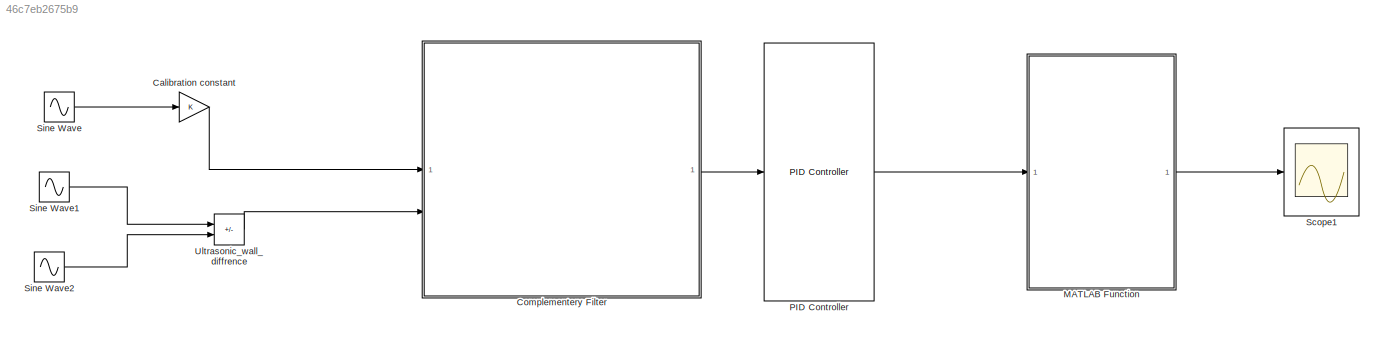
MODEL slx_46c7eb2675b9
KIND model
CONFIG AbsTol = auto
CONFIG EnableMultiTasking = on
CONFIG FixedStep = auto
CONFIG MaxStep = auto
CONFIG MinStep = auto
CONFIG RelTol = 1e-3
CONFIG SampleTimeConstraint = Unconstrained
CONFIG SolverName = VariableStepAuto
CONFIG StartTime = 0.0
CONFIG StopTime = 10.0
BLOCK [Gain] Calibration constant
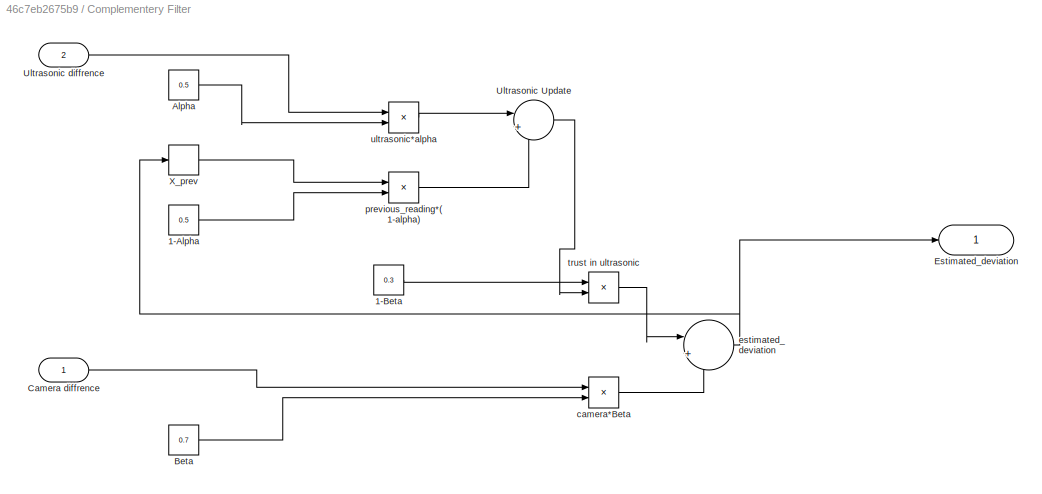
BLOCK [SubSystem] Complementery Filter
BLOCK [Constant] Complementery Filter/1-Alpha
  Value = 0.5
BLOCK [Constant] Complementery Filter/1-Beta
  Value = 0.3
BLOCK [Constant] Complementery Filter/Alpha
  Value = 0.5
BLOCK [Constant] Complementery Filter/Beta
  Value = 0.7
BLOCK [Inport] Complementery Filter/Camera diffrence
BLOCK [Outport] Complementery Filter/Estimated_deviation
BLOCK [Sum] Complementery Filter/Ultrasonic Update
  Inputs = |++
BLOCK [Inport] Complementery Filter/Ultrasonic diffrence
  IconDisplay = Signal name
  Port = 2
BLOCK [Memory] Complementery Filter/X_prev
BLOCK [Product] Complementery Filter/camera*Beta
BLOCK [Sum] Complementery Filter/estimated_deviation
  Inputs = |++
BLOCK [Product] Complementery Filter/previous_reading*(1-alpha)
BLOCK [Product] Complementery Filter/trust in ultrasonic
BLOCK [Product] Complementery Filter/ultrasonic*alpha
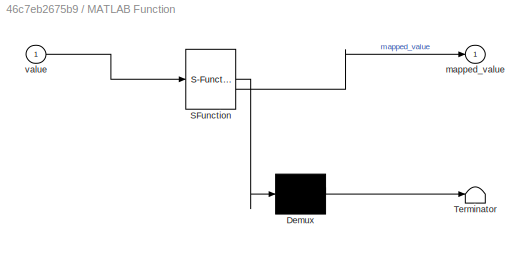
BLOCK [SubSystem] MATLAB Function
  ErrorFcn = Stateflow.Translate.translate
  PermitHierarchicalResolution = ExplicitOnly
  SFBlockType = MATLAB Function
  TreatAsAtomicUnit = on
BLOCK [Demux] MATLAB Function/ Demux 
  Outputs = 1
BLOCK [S-Function] MATLAB Function/ SFunction 
  EnableBusSupport = on
  FunctionName = sf_sfun
  PortCounts = [1 2]
  SFcnIsStateOwnerBlock = off
  SFunctionDeploymentMode = off
  Tag = Stateflow S-Function 2
BLOCK [Terminator] MATLAB Function/ Terminator 
BLOCK [Outport] MATLAB Function/mapped_value
BLOCK [Inport] MATLAB Function/value
BLOCK [Reference] PID Controller  REF=slpidlib/PID Controller
  LibrarySourceBlock = simulink/Continuous/PID Controller
  SourceBlock = slpidlib/PID Controller
  SourceType = PID 1dof
BLOCK [Scope] Scope1
  Floating = off
  NumInputPorts = 1
  ScopeSpecificationString = Simulink.scopes.TimeScopeBlockCfg('CurrentConfiguration', extmgr.ConfigurationSet(extmgr.Configuration('Core','General UI',true),extmgr.Configuration('Core','Source UI',true),extmgr.Configuration('Sources','WiredSimulink',true,'DataLoggingVariableName','ScopeData1'),extmgr.Configuration('Visuals','Time Domain',true,'SerializedDisplays',{struct('MinYLimReal','24.69','MaxYLimReal','160.26151','YLabe...<+1556ch>
BLOCK [Sin] Sine Wave
  Amplitude = 25
  SampleTime = 0
BLOCK [Sin] Sine Wave1
  Amplitude = 25
  SampleTime = 0
BLOCK [Sin] Sine Wave2
  Amplitude = 25
  SampleTime = 0
BLOCK [Sum] Ultrasonic_wall_diffrence
  IconShape = rectangular
  Inputs = +-
LINE Calibration constant:1 -> Complementery Filter:1
LINE Complementery Filter/1-Alpha:1 -> Complementery Filter/previous_reading*(1-alpha):2
LINE Complementery Filter/1-Beta:1 -> Complementery Filter/trust in ultrasonic:1
LINE Complementery Filter/Alpha:1 -> Complementery Filter/ultrasonic*alpha:2
LINE Complementery Filter/Beta:1 -> Complementery Filter/camera*Beta:2
LINE Complementery Filter/Camera diffrence:1 -> Complementery Filter/camera*Beta:1
LINE Complementery Filter/Ultrasonic Update:1 -> Complementery Filter/trust in ultrasonic:2
LINE Complementery Filter/Ultrasonic diffrence:1 -> Complementery Filter/ultrasonic*alpha:1
LINE Complementery Filter/X_prev:1 -> Complementery Filter/previous_reading*(1-alpha):1
LINE Complementery Filter/camera*Beta:1 -> Complementery Filter/estimated_deviation:2
NET Complementery Filter/estimated_deviation:1 -> Complementery Filter/Estimated_deviation:1, Complementery Filter/X_prev:1
LINE Complementery Filter/previous_reading*(1-alpha):1 -> Complementery Filter/Ultrasonic Update:2
LINE Complementery Filter/trust in ultrasonic:1 -> Complementery Filter/estimated_deviation:1
LINE Complementery Filter/ultrasonic*alpha:1 -> Complementery Filter/Ultrasonic Update:1
LINE Complementery Filter:1 -> PID Controller:1
LINE MATLAB Function:1 -> Scope1:1
LINE PID Controller:1 -> MATLAB Function:1
LINE Sine Wave1:1 -> Ultrasonic_wall_diffrence:1
LINE Sine Wave2:1 -> Ultrasonic_wall_diffrence:2
LINE Sine Wave:1 -> Calibration constant:1
LINE Ultrasonic_wall_diffrence:1 -> Complementery Filter:2
note: NET lines group one-source signal fan-out (src -> all destinations, sorted); 1:1 wires keep LINE
CHART MATLAB Function states=1 transitions=1
  STATE_LABEL 'eML_blk_kernel()'
  STATE_LABEL 'SCRIPT:\nfunction mapped_value = map_value(value)\n%MAP_VALUE maps a value from one range to another\n\n    from_low=-50;\n    from_high= 50;\n    to_low=30;\n    to_high=160;\n    % Avoid division by zero\n    if (from_high - from_low) == 0\n        mapped_value = to_low;\n        return;\n    end\n\n    % mapping equation\n    mapped_value = (value - from_low) / (from_high - from_low) * ...\n                   ...<+33ch>'
CHART  states=0 transitions=0
